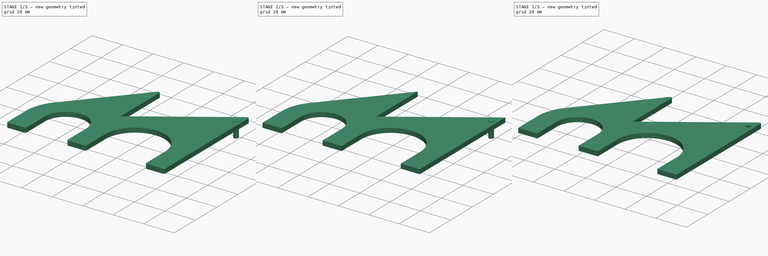
[diagram: build sequence overview — one tinted view per stage of 3, left to right]
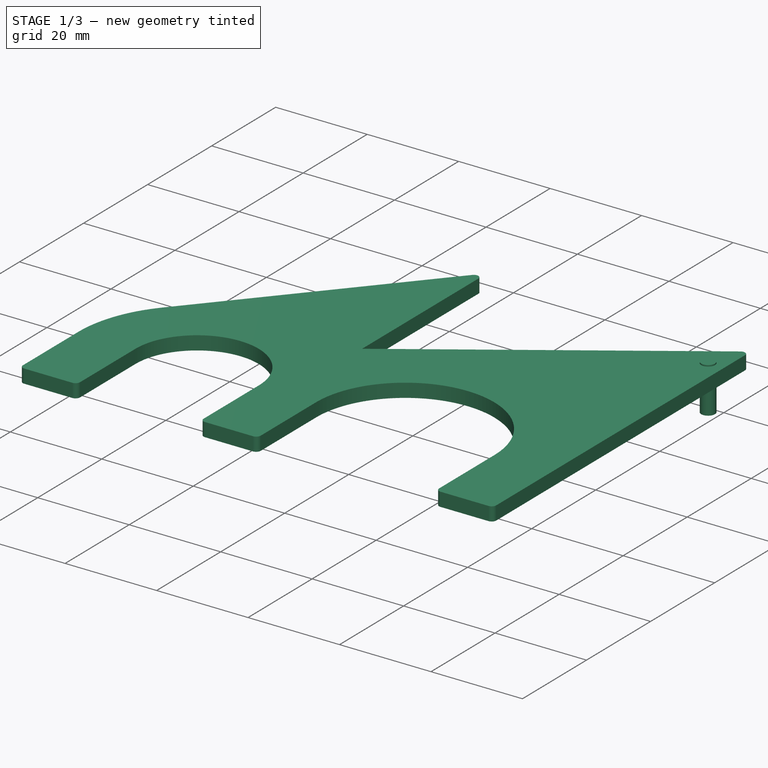
[diagram: stage 1 of 3 — iso view after this stage's code; geometry added in this stage tinted green]
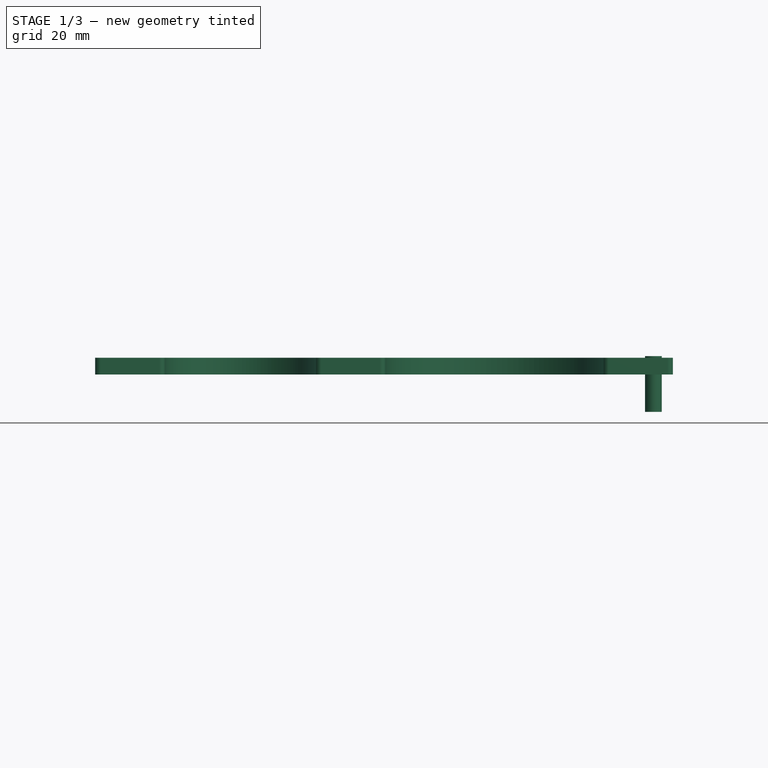
[diagram: stage 1 of 3 — front view after this stage's code; geometry added in this stage tinted green]
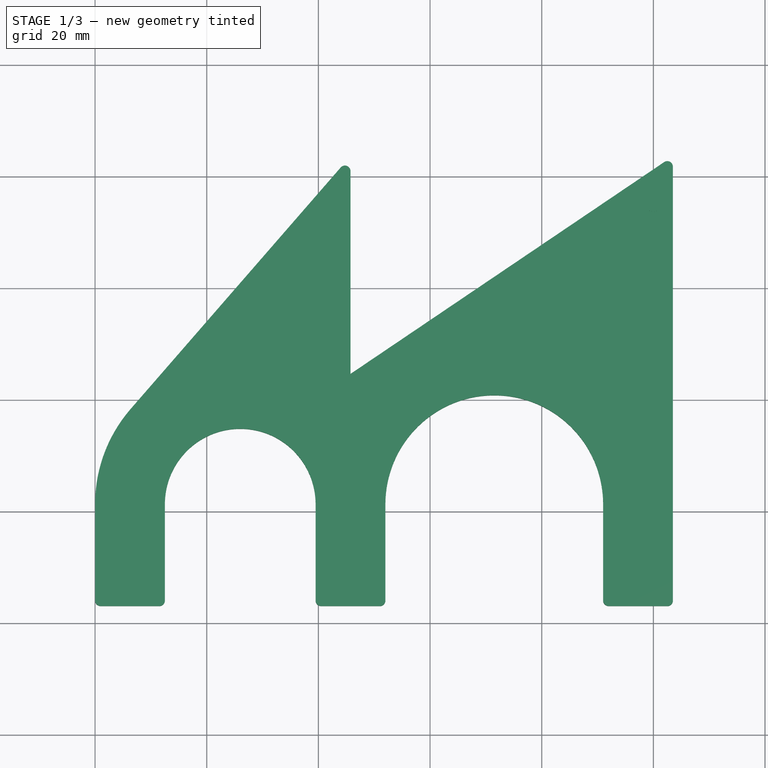
[diagram: stage 1 of 3 — top view after this stage's code; geometry added in this stage tinted green]
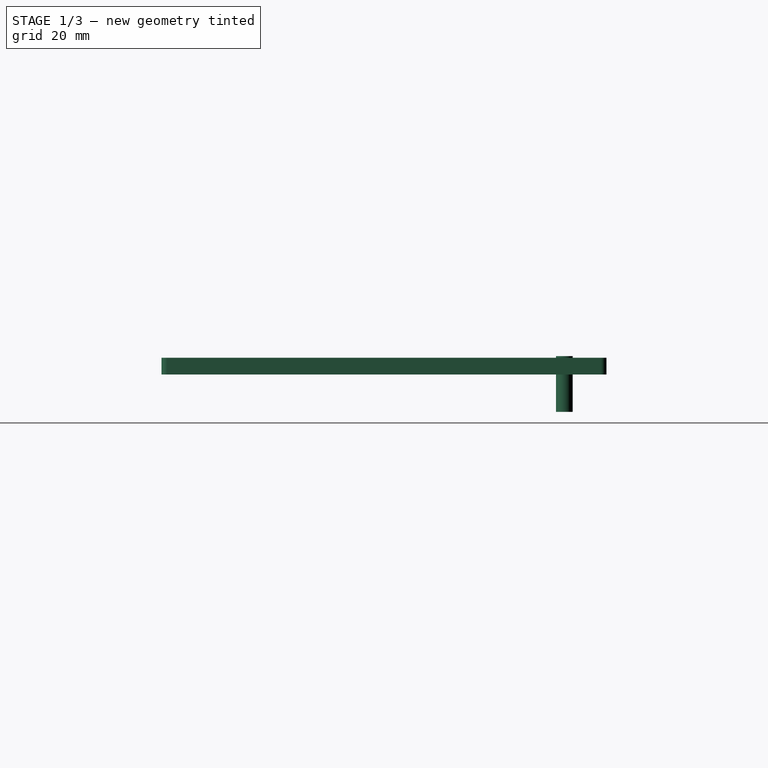
[diagram: stage 1 of 3 — right view after this stage's code; geometry added in this stage tinted green]
FCSTD DOCUMENT  (FreeCAD 0.15R4671 (Git))
Label: BilbaoMakers
License: CreativeCommons Attribution-ShareAlike
LicenseURL: http://creativecommons.org/licenses/by-sa/4.0/
objects: Sketcher::SketchObject×2, App::DocumentObjectGroup×2, Part::Feature×2, PartDesign::Pad×2, Part::Cut×1, Part::Fillet×1, Part::FeaturePython×1
note: 11 computed .brp shape members not serialized (recipe doc carries the construction recipe); baked Part::Feature solids carry a one-line shape summary decoded from their .brp

FEATURE [PartDesign::Pad] Pad001
  Length = 10
  Length2 = 100
  Placement = pos=(0,0,3.3) rot=(0,0,1;0rad)
  Reversed = true
  Sketch = -> Sketch
  Type = 0
FEATURE [Part::FeaturePython] Clone  label="Clone of Fillet001"  # WARN: FeaturePython — macro-defined, semantics opaque (R4)
  Scale = (1,1,1)
FEATURE [App::DocumentObjectGroup] Group  label="Assembly"
  Group = -> [Sweep,Cut,Clone]
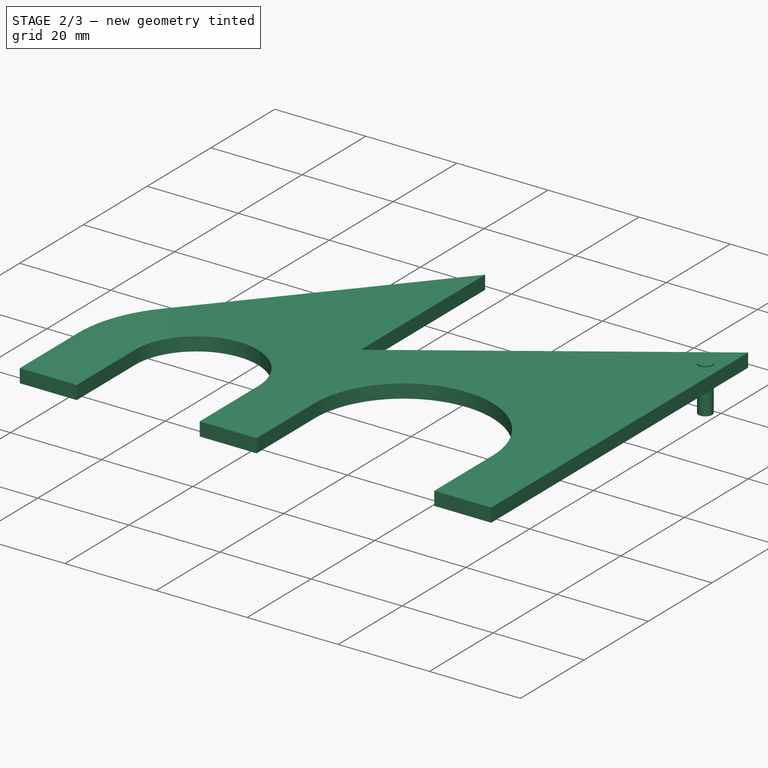
[diagram: stage 2 of 3 — iso view after this stage's code; geometry added in this stage tinted green]
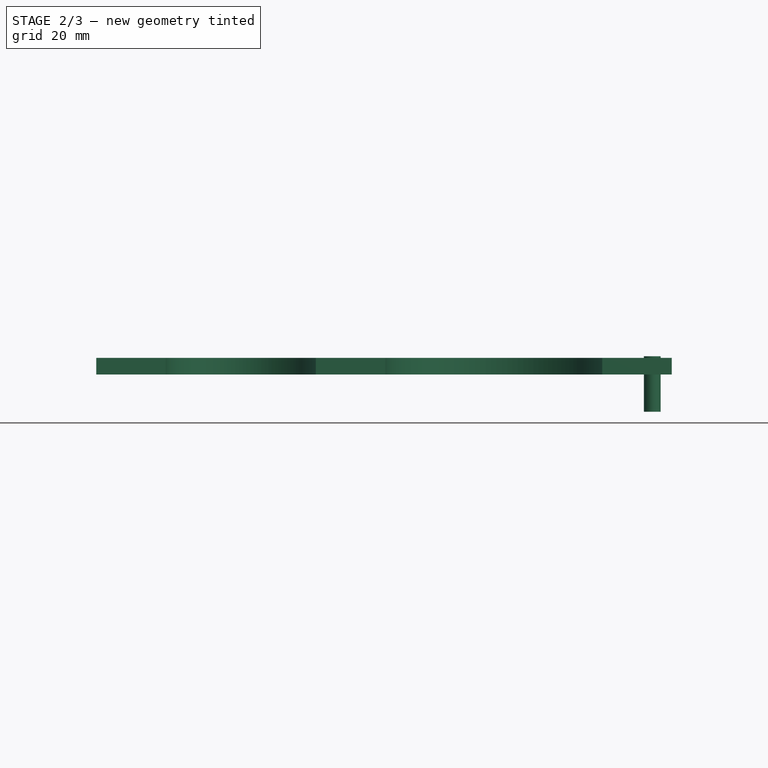
[diagram: stage 2 of 3 — front view after this stage's code; geometry added in this stage tinted green]
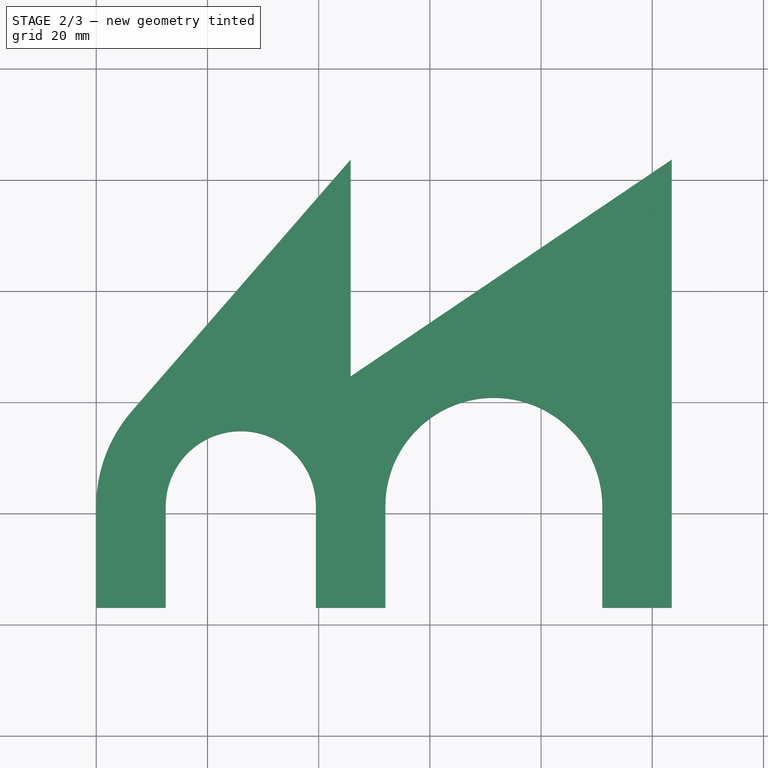
[diagram: stage 2 of 3 — top view after this stage's code; geometry added in this stage tinted green]
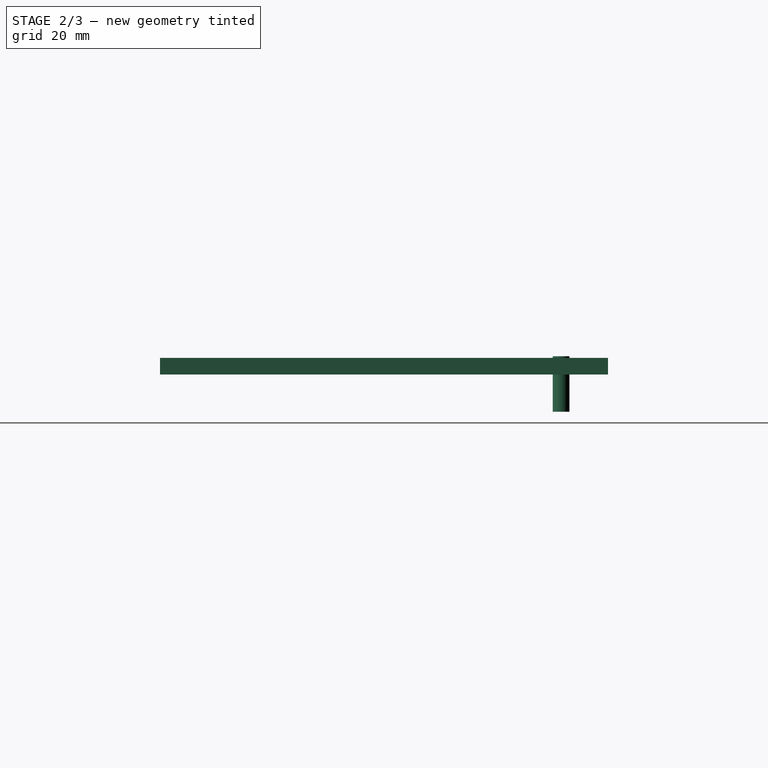
[diagram: stage 2 of 3 — right view after this stage's code; geometry added in this stage tinted green]
FEATURE [Sketcher::SketchObject] Sketch  label="hole-sketch"
  Placement = pos=(0,0,3.3) rot=(0,0,1;0rad)
  sketch-geometry (1):
    g0: Circle CenterX=0 CenterY=15.1 CenterZ=0 NormalX=0 NormalY=0 NormalZ=1 Radius=1.5
  constraints (3):
    c: Radius(g0) = 1.5
    c: PointOnObject(g0,g-2)
    c: DistanceY(g-1,g0) = 15.1
FEATURE [App::DocumentObjectGroup] Group001  label="Logo"
FEATURE [Part::Feature] Sweep  label="key-ring-model-1"
  Placement = pos=(-1.2,24.7546,1.6391) rot=(0.333333,0.881918,0.333333;1.69612rad)
  shape: bbox 3.31 x 27.02 x 26.33 mm, 4 faces (baked)
FEATURE [Part::Feature] Cut  label="key-model-1"
  Placement = pos=(-5.46976,31.0266,0) rot=(0,0,1;0.517888rad)
  shape: bbox 49.82 x 36.6 x 2.3 mm, 44 faces (baked)
FEATURE [Sketcher::SketchObject] Sketch001
  sketch-geometry (16):
    g0: LineSegment StartX=3.5 StartY=-57.0476 StartZ=0 EndX=3.5 EndY=23.5324 EndZ=0
    g1: LineSegment StartX=3.5 StartY=-57.0476 StartZ=0 EndX=-9 EndY=-57.0476 EndZ=0
    g2: LineSegment StartX=-9 StartY=-57.0476 StartZ=0 EndX=-9 EndY=-38.7976 EndZ=0
    g3: LineSegment StartX=-48 StartY=-38.7976 StartZ=0 EndX=-48 EndY=-57.0476 EndZ=0
    g4: LineSegment StartX=-48 StartY=-57.0476 StartZ=0 EndX=-60.5 EndY=-57.0476 EndZ=0
    g5: LineSegment StartX=-60.5 StartY=-57.0476 StartZ=0 EndX=-60.5 EndY=-38.7976 EndZ=0
    g6: LineSegment StartX=-87.5 StartY=-38.7976 StartZ=0 EndX=-87.5 EndY=-57.0476 EndZ=0
    g7: LineSegment StartX=-87.5 StartY=-57.0476 StartZ=0 EndX=-100 EndY=-57.0476 EndZ=0
    g8: LineSegment StartX=-100 StartY=-57.0476 StartZ=0 EndX=-100 EndY=-38.7976 EndZ=0
    g9: LineSegment [constr] StartX=3.5 StartY=23.5324 StartZ=0 EndX=-54.25 EndY=23.5324 EndZ=0
    g10: LineSegment StartX=-54.25 StartY=23.5324 StartZ=0 EndX=-54.25 EndY=-15.4676 EndZ=0
    g11: LineSegment StartX=3.5 StartY=23.5324 StartZ=0 EndX=-54.25 EndY=-15.4676 EndZ=0
    g12: ArcOfCircle CenterX=-74 CenterY=-38.7976 CenterZ=0 NormalX=0 NormalY=0 NormalZ=1 Radius=13.5 StartAngle=6.28318 EndAngle=9.42478
    g13: ArcOfCircle CenterX=-28.5 CenterY=-38.7976 CenterZ=0 NormalX=0 NormalY=0 NormalZ=1 Radius=19.5 StartAngle=1.19676e-06 EndAngle=3.14159
    g14: LineSegment StartX=-54.25 StartY=23.5324 StartZ=0 EndX=-93.6187 EndY=-21.7357 EndZ=0
    g15: ArcOfCircle CenterX=-74 CenterY=-38.7976 CenterZ=0 NormalX=0 NormalY=0 NormalZ=1 Radius=26 StartAngle=2.42579 EndAngle=3.14159
  constraints (51):
    c: Vertical(g0)
    c: DistanceY(g0) = 80.58
    c: DistanceX(g-1,g0) = 3.5
    c: Coincident(g1,g0)
    c: Horizontal(g1)
    c: DistanceX(g1) = -12.5
    c: Coincident(g2,g1)
    c: Vertical(g2)
    c: DistanceY(g2) = 18.25
    c: Vertical(g3)
    c: DistanceY(g3) = -18.25
    c: Coincident(g4,g3)
    c: Horizontal(g4)
    c: DistanceX(g4) = -12.5
    c: Coincident(g5,g4)
    c: Vertical(g5)
    c: DistanceY(g5) = 18.25
    c: Vertical(g6)
    c: DistanceY(g6) = -18.25
    c: Coincident(g7,g6)
    c: Horizontal(g7)
    c: DistanceX(g7) = -12.5
    c: Coincident(g8,g7)
    c: Vertical(g8)
    c: DistanceY(g8) = 18.25
    c: Coincident(g9,g0)
    c: Horizontal(g9)
    c: DistanceX(g9) = -57.75
    c: Coincident(g10,g9)
    c: Vertical(g10)
    c: DistanceY(g10) = -39
    c: Coincident(g11,g0)
    c: Coincident(g11,g10)
    c: Symmetric(g6,g5,g12)
    c: Tangent(g12,g6)
    c: PointOnObject(g12,g5)
    c: Symmetric(g3,g2,g13)
    c: Tangent(g13,g3)
    c: PointOnObject(g13,g2)
    c: Coincident(g12,g6)
    c: Coincident(g13,g3)
    c: DistanceX(g3,g1) = 39
    c: DistanceX(g7,g0) = 103.5
    c: Coincident(g14,g9)
    c: Coincident(g15,g12)
    c: Coincident(g15,g8)
    c: Coincident(g15,g14)
    c: DistanceY(g-1,g10) = -15.4676
    c: Tangent(g14,g15)
    c: Coincident(g2,g13)
    c: Coincident(g5,g12)
FEATURE [PartDesign::Pad] Pad
  Length = 3
  Length2 = 100
  Sketch = -> Sketch001
  Type = 0
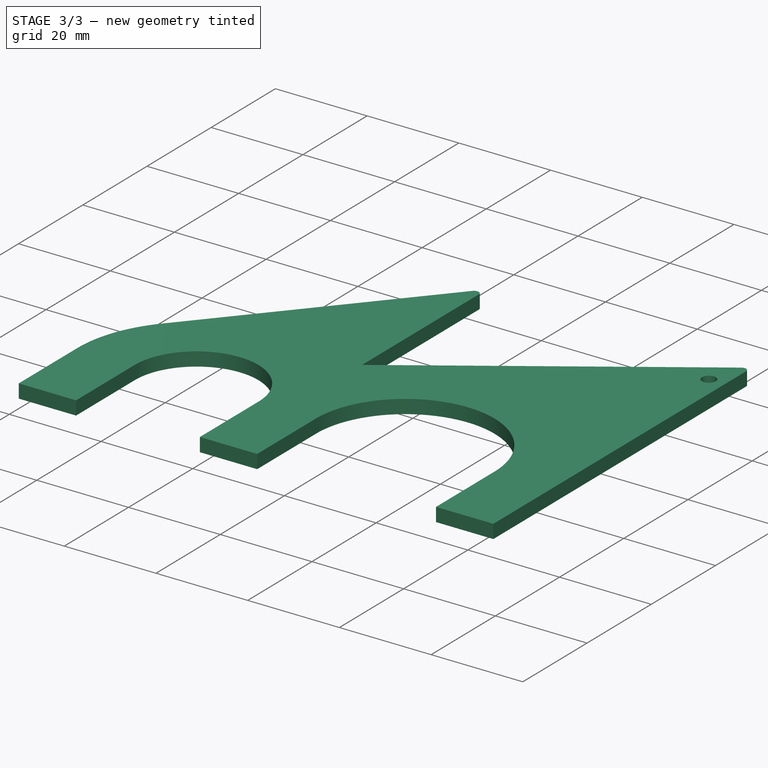
[diagram: stage 3 of 3 — iso view after this stage's code; geometry added in this stage tinted green]
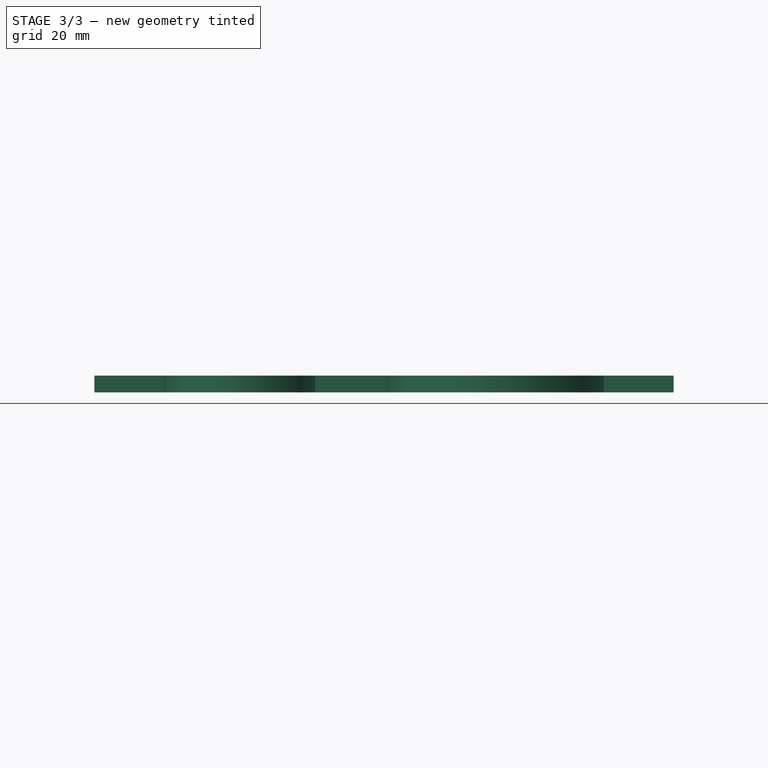
[diagram: stage 3 of 3 — front view after this stage's code; geometry added in this stage tinted green]
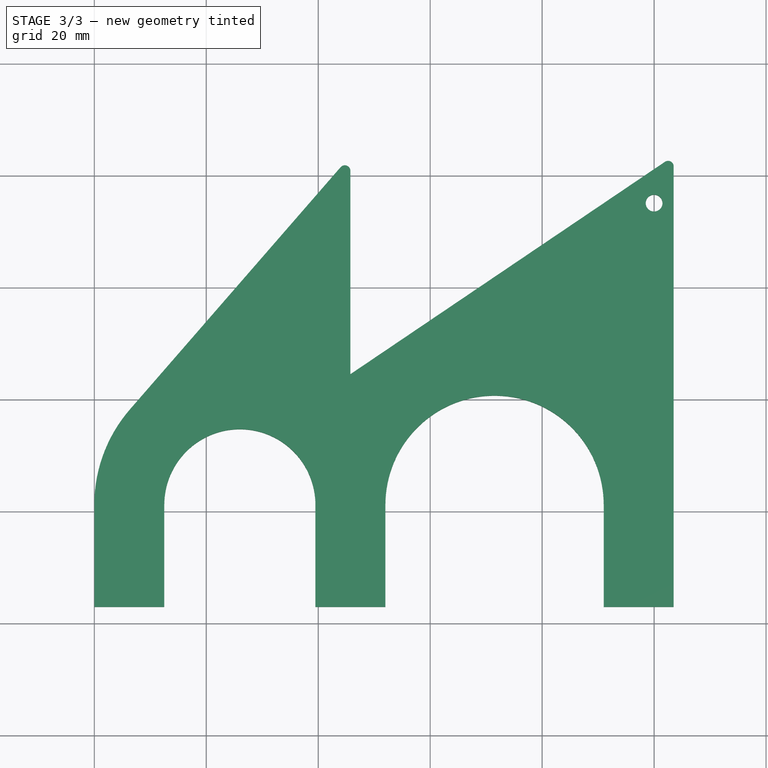
[diagram: stage 3 of 3 — top view after this stage's code; geometry added in this stage tinted green]
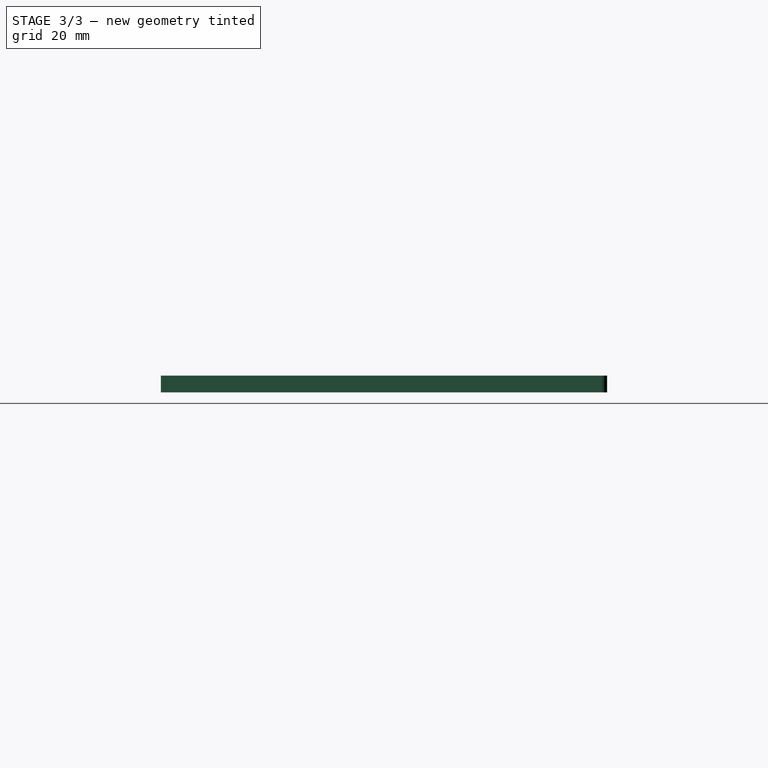
[diagram: stage 3 of 3 — right view after this stage's code; geometry added in this stage tinted green]
FEATURE [Part::Cut] Cut001
  Base = -> Pad
  Tool = -> Pad001
FEATURE [Part::Fillet] Fillet
  Base = -> Cut001
  Edges = 2 edges r=1: [Edge37,Edge41]
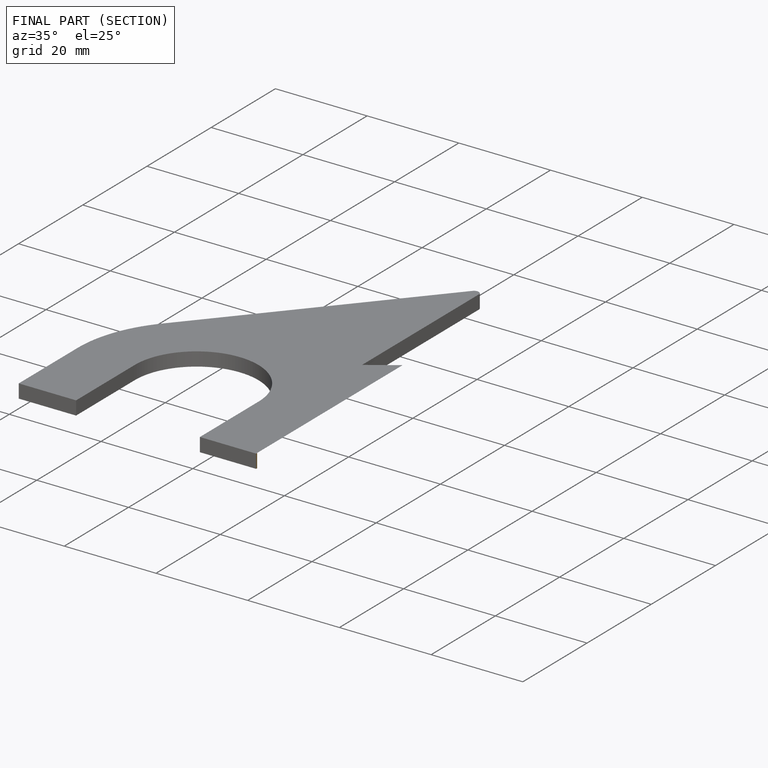
[diagram: finished part — half-section view (interior)]
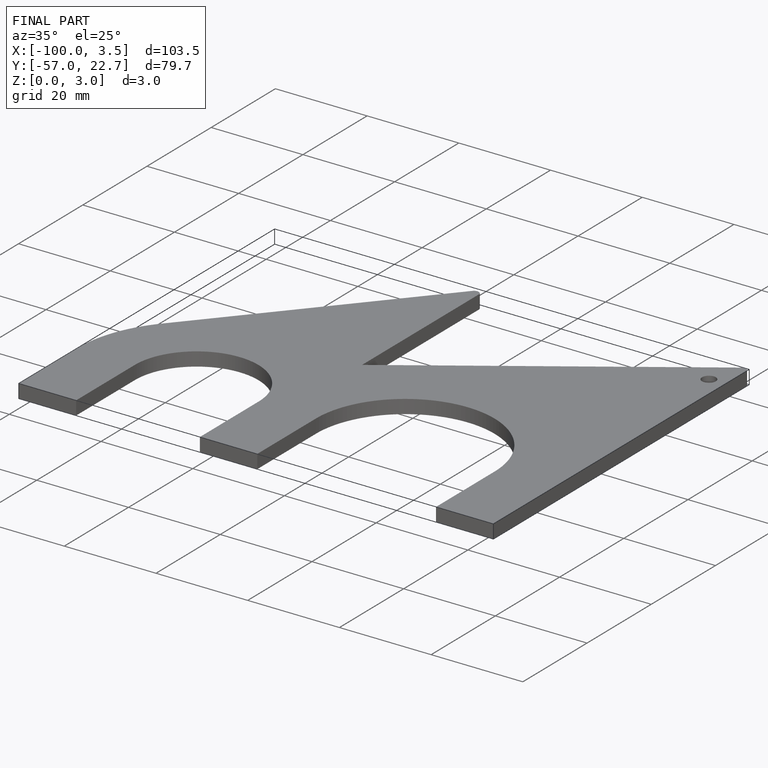
[diagram: finished part — iso view with bounding-box wireframe]
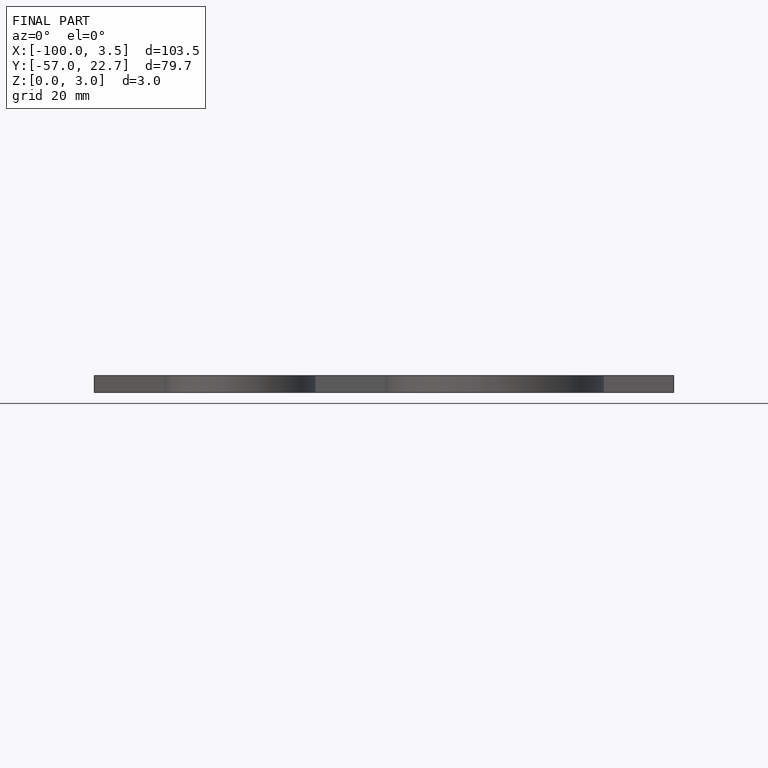
[diagram: finished part — front view with bounding-box wireframe]
